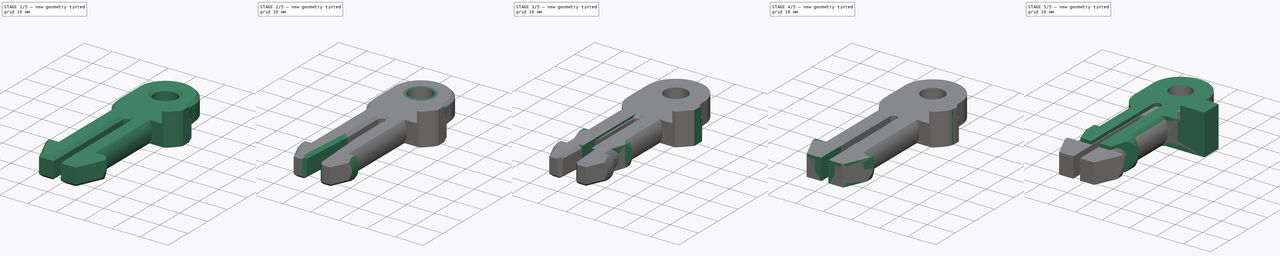
[diagram: build sequence overview — one tinted view per stage of 5, left to right]
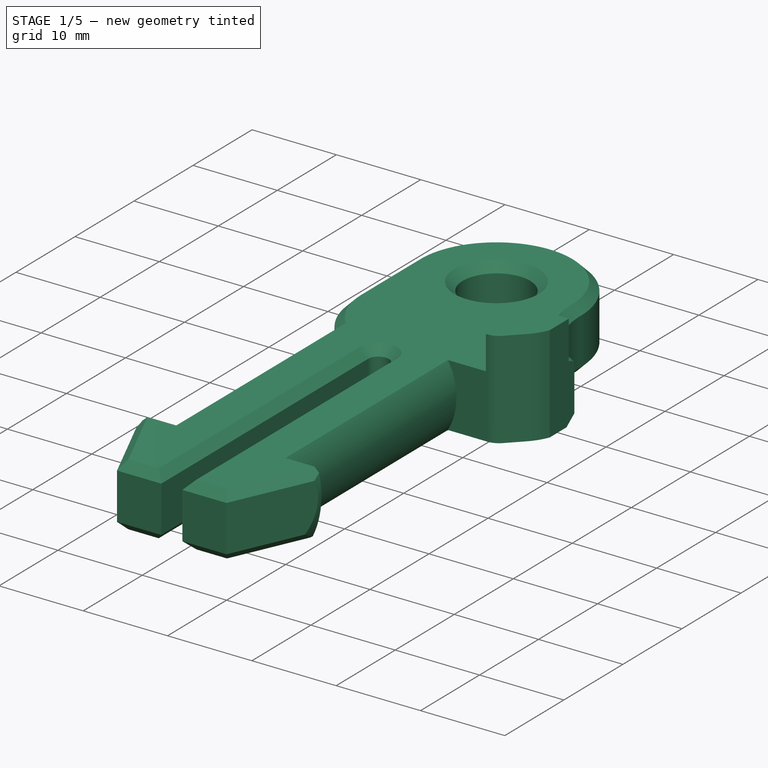
[diagram: stage 1 of 5 — iso view after this stage's code; geometry added in this stage tinted green]
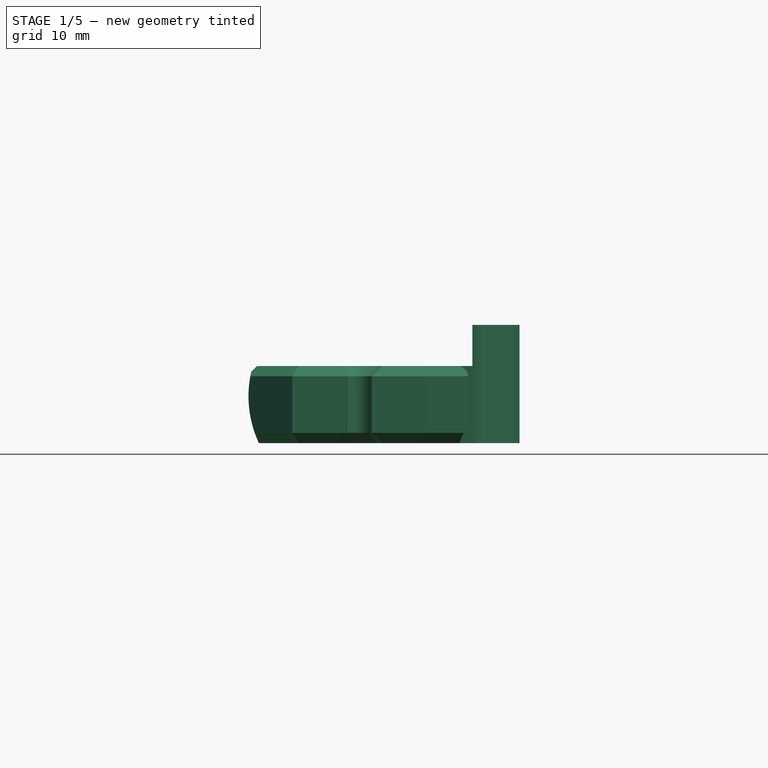
[diagram: stage 1 of 5 — front view after this stage's code; geometry added in this stage tinted green]
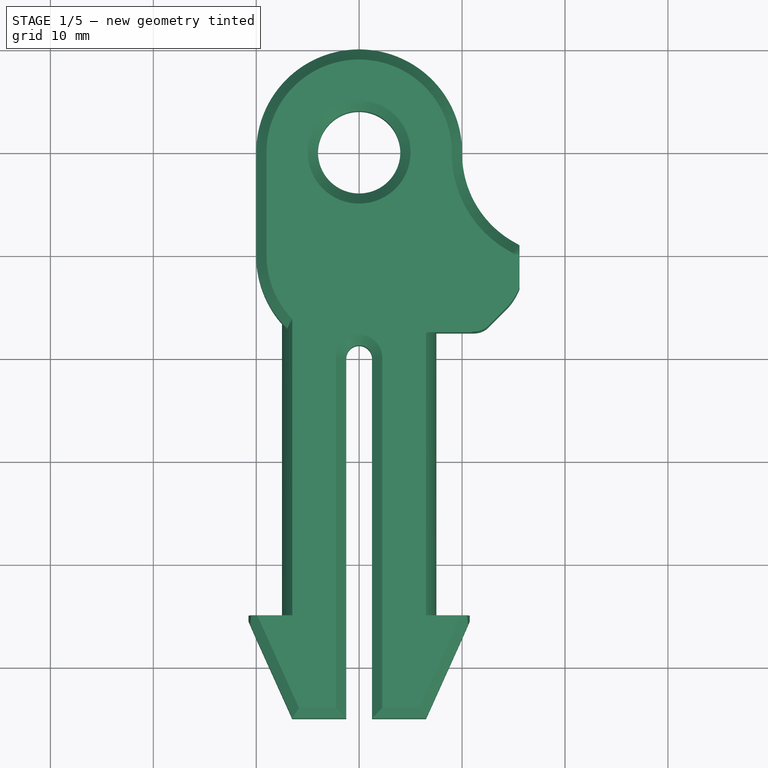
[diagram: stage 1 of 5 — top view after this stage's code; geometry added in this stage tinted green]
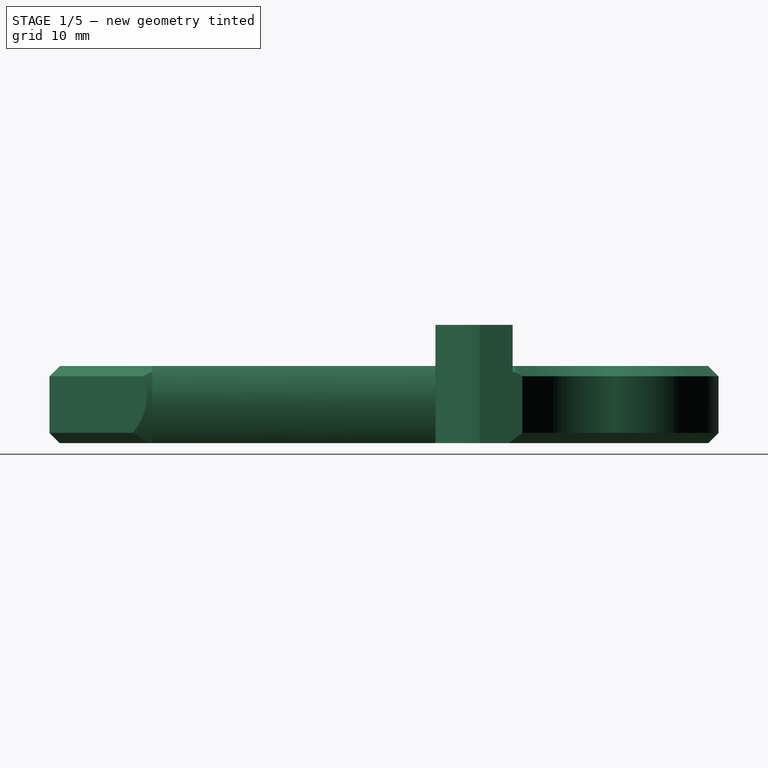
[diagram: stage 1 of 5 — right view after this stage's code; geometry added in this stage tinted green]
FCSTD DOCUMENT  (FreeCAD 0.16R5861 (Git))
Label: tippy_feed_tube_holder_v0.6
License: All rights reserved
LicenseURL: http://en.wikipedia.org/wiki/All_rights_reserved
objects: Sketcher::SketchObject×25, PartDesign::Pocket×15, PartDesign::Chamfer×15, PartDesign::Pad×10, PartDesign::Fillet×4, Part::Feature×3
note: 97 computed .brp shape members not serialized (recipe doc carries the construction recipe); baked Part::Feature solids carry a one-line shape summary decoded from their .brp

FEATURE [Part::Feature] Pocket003008001  label="Pocket003009"
  shape: bbox 26.75 x 65 x 11.5 mm, 32 faces (baked)
FEATURE [PartDesign::Chamfer] Chamfer001
  Base = -> Pocket003008001 [Edge71]
  Size = 1
FEATURE [PartDesign::Chamfer] Chamfer002
  Base = -> Chamfer001 [Edge31]
  Size = 1
FEATURE [PartDesign::Chamfer] Chamfer003
  Base = -> Chamfer002 [Edge20]
  Size = 1
FEATURE [PartDesign::Chamfer] Chamfer004
  Base = -> Chamfer003 [Edge1,Edge8,Edge47,Edge30]
  Size = 1
FEATURE [PartDesign::Chamfer] Chamfer005
  Base = -> Chamfer004 [Edge9,Edge4,Edge34,Edge48]
  Size = 1
FEATURE [PartDesign::Chamfer] Chamfer006
  Base = -> Chamfer005 [Edge97]
  Size = 1
FEATURE [PartDesign::Chamfer] Chamfer007
  Base = -> Chamfer006 [Edge48]
  Size = 1
FEATURE [Sketcher::SketchObject] Sketch021
  Placement = pos=(0,0,1.25) rot=(1,0,0;3.14159rad)
  Support = -> Chamfer007 [Face1]
  sketch-geometry (4):
    g0: LineSegment StartX=16.8382 StartY=-1.22943 StartZ=0 EndX=15.5788 EndY=-1.22943 EndZ=0
    g1: LineSegment StartX=15.5788 StartY=-1.22943 StartZ=0 EndX=15.5788 EndY=4.45657 EndZ=0
    g2: LineSegment StartX=15.5788 StartY=4.45657 StartZ=0 EndX=16.8382 EndY=4.45657 EndZ=0
    g3: LineSegment StartX=16.8382 StartY=4.45657 StartZ=0 EndX=16.8382 EndY=-1.22943 EndZ=0
  constraints (12):
    c: Coincident(g0,g1)
    c: Coincident(g1,g2)
    c: Coincident(g2,g3)
    c: Coincident(g3,g0)
    c: Horizontal(g0)
    c: Horizontal(g2)
    c: Vertical(g1)
    c: Vertical(g3)
    c: DistanceX(g0) = 16.8382
    c: DistanceY(g0) = -1.22943
    c: DistanceX(g1) = 15.5788
    c: DistanceY(g1) = 4.45657
FEATURE [PartDesign::Pocket] Pocket003008002
  Length = 5
  Sketch = -> Sketch021
  Type = 1
FEATURE [PartDesign::Chamfer] Chamfer008
  Base = -> Pocket003008002 [Edge13]
  Size = 1
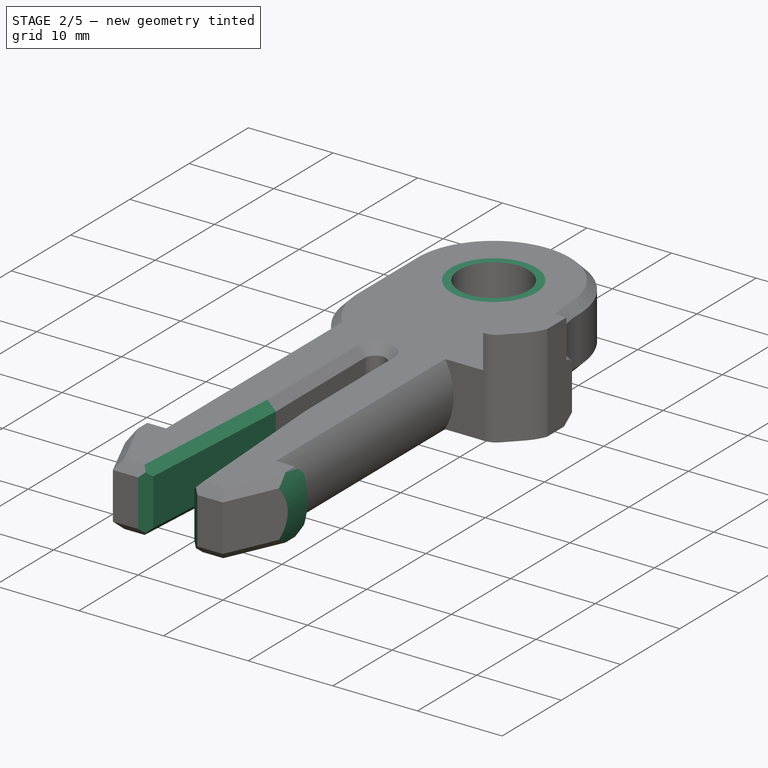
[diagram: stage 2 of 5 — iso view after this stage's code; geometry added in this stage tinted green]
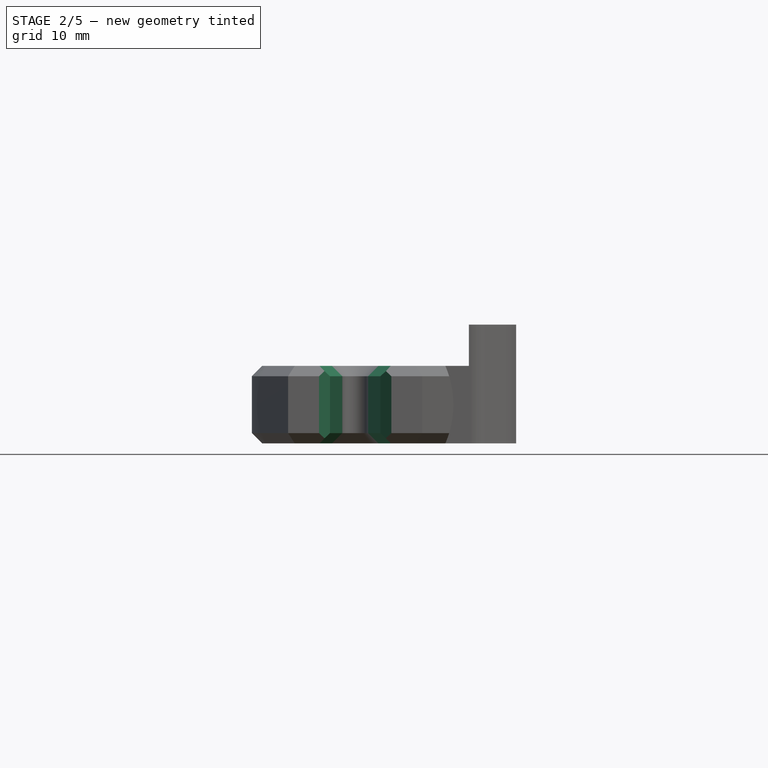
[diagram: stage 2 of 5 — front view after this stage's code; geometry added in this stage tinted green]
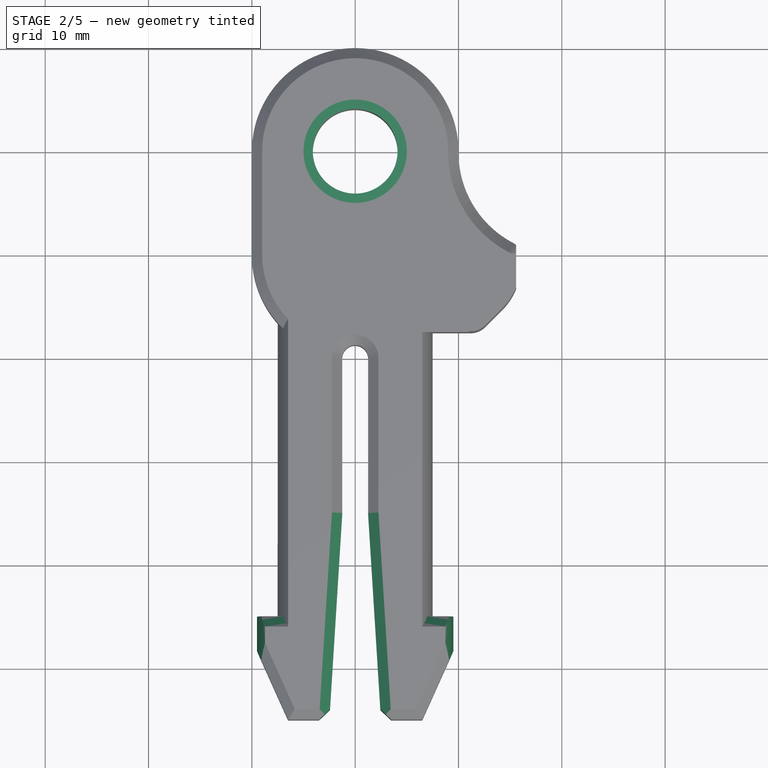
[diagram: stage 2 of 5 — top view after this stage's code; geometry added in this stage tinted green]
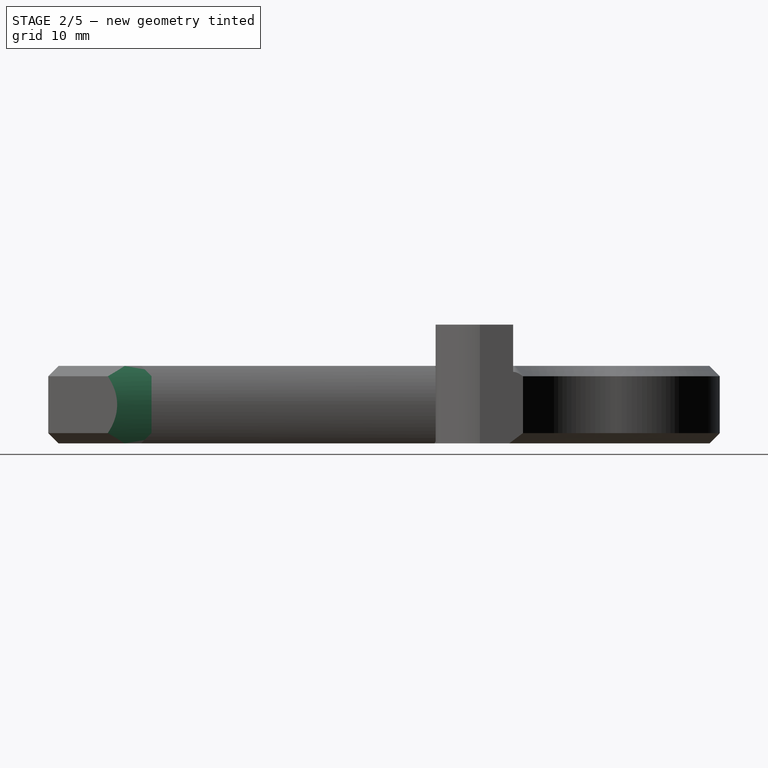
[diagram: stage 2 of 5 — right view after this stage's code; geometry added in this stage tinted green]
FEATURE [PartDesign::Chamfer] Chamfer009
  Base = -> Chamfer008 [Edge15,Edge20,Edge66,Edge81]
  Size = 1
FEATURE [Sketcher::SketchObject] Sketch022
  Placement = pos=(0,-45,0) rot=(1,0,0;1.5708rad)
  Support = -> Chamfer009 [Face30]
  sketch-geometry (2):
    g0: Circle CenterX=0 CenterY=5 CenterZ=0 NormalX=0 NormalY=0 NormalZ=1 Radius=9.5
    g1: Circle CenterX=0 CenterY=5 CenterZ=0 NormalX=0 NormalY=0 NormalZ=1 Radius=12
  constraints (5):
    c: PointOnObject(g0,g-2)
    c: Coincident(g1,g0)
    c: Radius(g1) = 12
    c: Radius(g0) = 9.5
    c: DistanceY(g-1,g0) = 5
FEATURE [PartDesign::Pocket] Pocket003008003
  Length = 12
  Sketch = -> Sketch022
  Type = 0
FEATURE [Sketcher::SketchObject] Sketch023
  ExternalGeometry = -> [Pocket003008003]
  Placement = pos=(0,0,1.25) rot=(1,0,0;3.14159rad)
  Support = -> Pocket003008003 [Face1]
  sketch-geometry (1):
    g0: Circle CenterX=0 CenterY=-10 CenterZ=0 NormalX=0 NormalY=0 NormalZ=1 Radius=4.5
  constraints (2):
    c: Coincident(g0,g-3)
    c: Radius(g0) = 4.5
FEATURE [PartDesign::Pocket] Pocket003008004
  Length = 5
  Sketch = -> Sketch023
  Type = 1
FEATURE [Sketcher::SketchObject] Sketch024
  ExternalGeometry = -> [Pocket003008004]
  Placement = pos=(0,0,8.75) rot=(0,0,1;0rad)
  Support = -> Pocket003008004 [Face38]
  sketch-geometry (4):
    g0: LineSegment StartX=-1.25 StartY=-25 StartZ=0 EndX=-2.5 EndY=-45 EndZ=0
    g1: LineSegment StartX=-2.5 StartY=-45 StartZ=0 EndX=2.5 EndY=-45 EndZ=0
    g2: LineSegment StartX=2.5 StartY=-45 StartZ=0 EndX=1.25 EndY=-25 EndZ=0
    g3: LineSegment StartX=1.25 StartY=-25 StartZ=0 EndX=-1.25 EndY=-25 EndZ=0
  constraints (12):
    c: PointOnObject(g0,g-3)
    c: PointOnObject(g0,g-6)
    c: Coincident(g0,g1)
    c: PointOnObject(g1,g-5)
    c: Coincident(g1,g2)
    c: PointOnObject(g2,g-4)
    c: Coincident(g2,g3)
    c: Coincident(g3,g0)
    c: Equal(g2,g0)
    c: Horizontal(g3)
    c: DistanceX(g1,g0) = -5
    c: DistanceY(g2,g1) = -20
FEATURE [PartDesign::Pocket] Pocket003008005
  Length = 5
  Sketch = -> Sketch024
  Type = 1
FEATURE [PartDesign::Chamfer] Chamfer010
  Base = -> Pocket003008005 [Edge51]
  Size = 1
FEATURE [PartDesign::Chamfer] Chamfer011
  Base = -> Chamfer010 [Edge58]
  Size = 1
FEATURE [PartDesign::Chamfer] Chamfer012
  Base = -> Chamfer011 [Edge126,Edge114]
  Size = 1
FEATURE [PartDesign::Chamfer] Chamfer013
  Base = -> Chamfer012 [Edge2,Edge186]
  Size = 1
FEATURE [Sketcher::SketchObject] Sketch025
  ExternalGeometry = -> [Chamfer013]
  Placement = pos=(0,0,8.75) rot=(0,0,1;0rad)
  Support = -> Chamfer013 [Face13]
  sketch-geometry (2):
    g0: Circle CenterX=0 CenterY=10 CenterZ=0 NormalX=0 NormalY=0 NormalZ=1 Radius=4.1
    g1: Circle CenterX=0 CenterY=10 CenterZ=0 NormalX=0 NormalY=0 NormalZ=1 Radius=5.5
  constraints (4):
    c: Coincident(g0,g-3)
    c: Coincident(g1,g0)
    c: Radius(g1) = 5.5
    c: Radius(g0) = 4.1
FEATURE [PartDesign::Pad] Pad009
  Length = 7.5
  Length2 = 100
  Reversed = true
  Sketch = -> Sketch025
  Type = 0
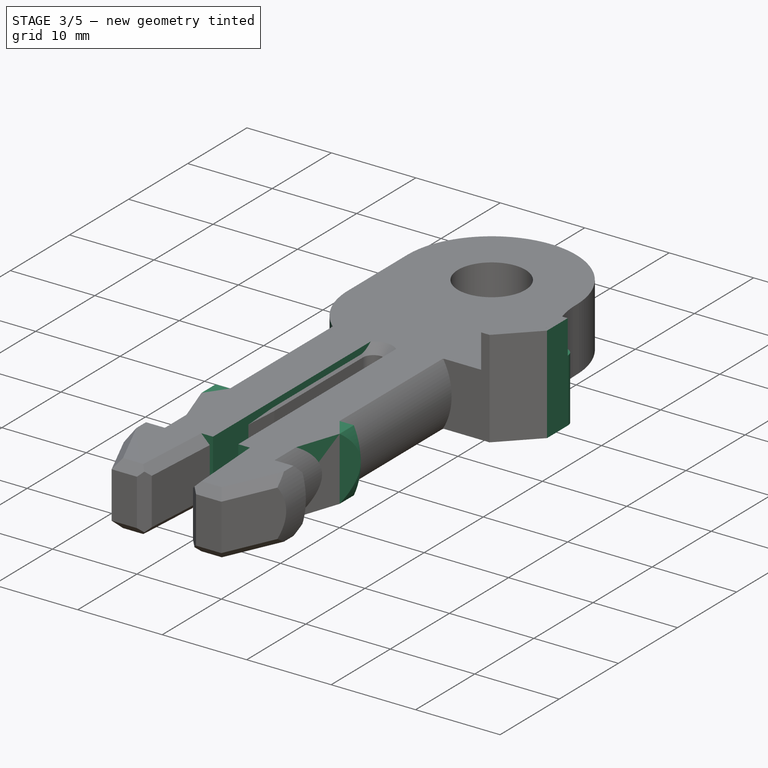
[diagram: stage 3 of 5 — iso view after this stage's code; geometry added in this stage tinted green]
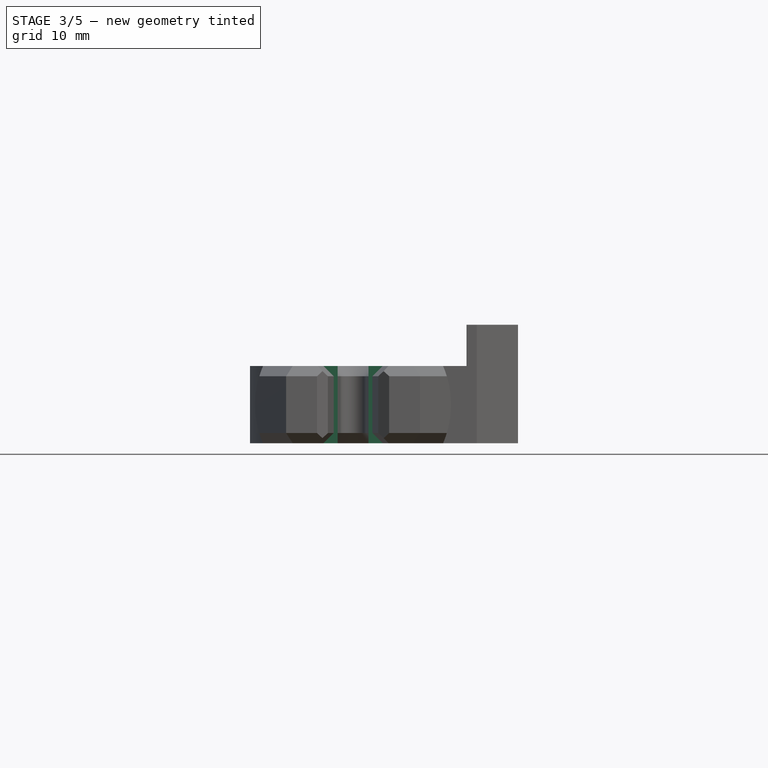
[diagram: stage 3 of 5 — front view after this stage's code; geometry added in this stage tinted green]
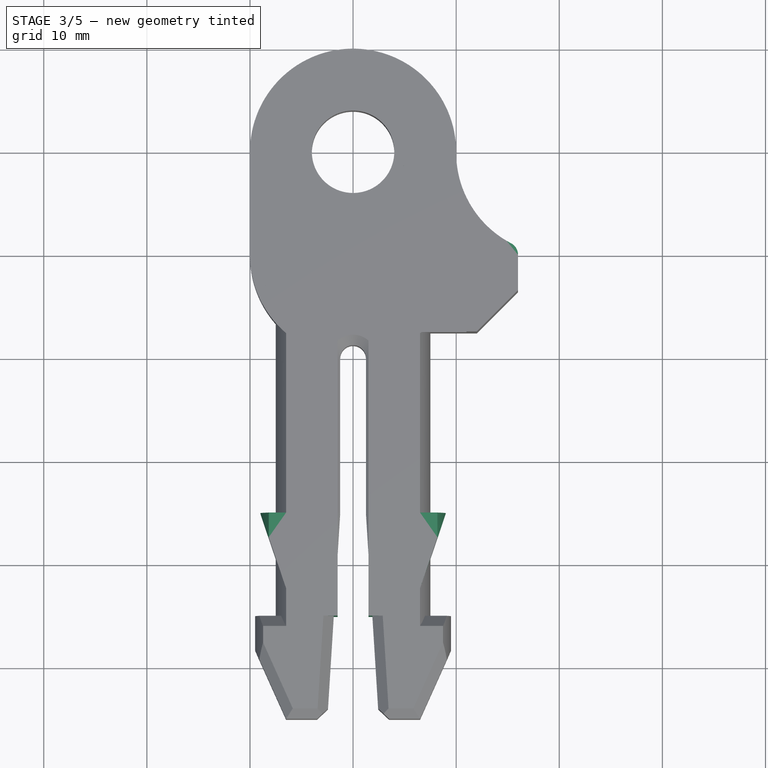
[diagram: stage 3 of 5 — top view after this stage's code; geometry added in this stage tinted green]
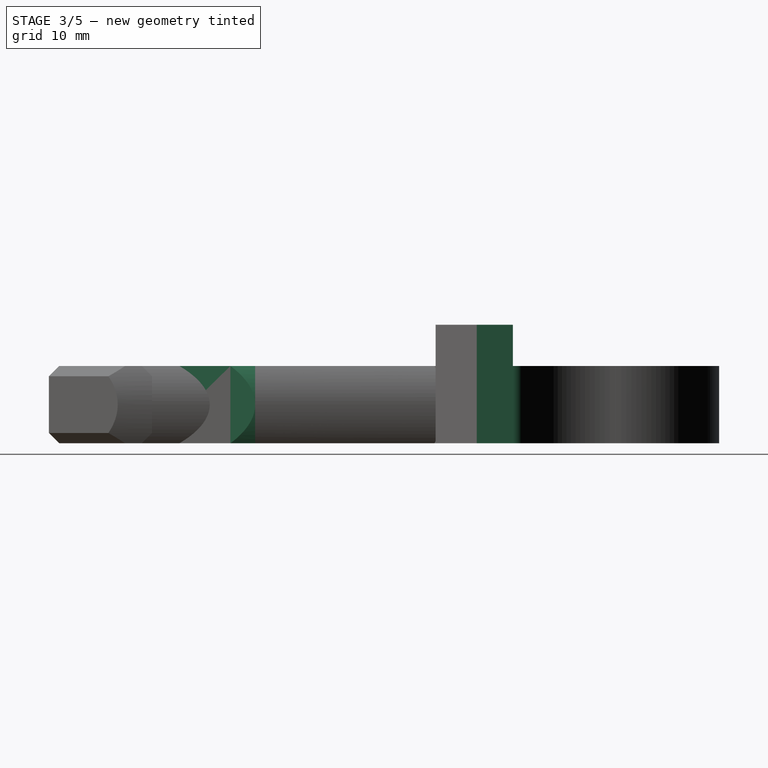
[diagram: stage 3 of 5 — right view after this stage's code; geometry added in this stage tinted green]
FEATURE [Part::Feature] Pocket003001  label="Pocket004"
  shape: bbox 31 x 55 x 15 mm, 29 faces (baked)
FEATURE [PartDesign::Fillet] Fillet
  Base = -> Pocket003001 [Edge44]
  Radius = 9.9
FEATURE [Sketcher::SketchObject] Sketch010
  ExternalGeometry = -> [Fillet]
  Placement = pos=(0,0,15) rot=(0,0,1;0rad)
  Support = -> Fillet [Face24]
  sketch-geometry (4):
    g0: LineSegment StartX=21 StartY=0 StartZ=0 EndX=11 EndY=0 EndZ=0
    g1: LineSegment StartX=11 StartY=0 StartZ=0 EndX=11 EndY=7 EndZ=0
    g2: LineSegment StartX=11 StartY=7 StartZ=0 EndX=21 EndY=7 EndZ=0
    g3: LineSegment StartX=21 StartY=7 StartZ=0 EndX=21 EndY=0 EndZ=0
  constraints (11):
    c: Coincident(g0,g1)
    c: Coincident(g1,g2)
    c: Coincident(g2,g3)
    c: Coincident(g3,g0)
    c: Horizontal(g0)
    c: Horizontal(g2)
    c: Vertical(g1)
    c: Vertical(g3)
    c: Coincident(g0,g-3)
    c: DistanceX(g2) = 10
    c: DistanceY(g3) = -7
FEATURE [PartDesign::Pocket] Pocket003002
  Length = 5
  Sketch = -> Sketch010
  Type = 0
FEATURE [Sketcher::SketchObject] Sketch011
  ExternalGeometry = -> [Pocket003002]
  Placement = pos=(0,0,15) rot=(0,0,1;0rad)
  Support = -> Pocket003002 [Face26]
  sketch-geometry (4):
    g0: LineSegment StartX=21 StartY=-7.5 StartZ=0 EndX=16 EndY=-7.5 EndZ=0
    g1: LineSegment StartX=16 StartY=-7.5 StartZ=0 EndX=16 EndY=2.5 EndZ=0
    g2: LineSegment StartX=16 StartY=2.5 StartZ=0 EndX=21 EndY=2.5 EndZ=0
    g3: LineSegment StartX=21 StartY=2.5 StartZ=0 EndX=21 EndY=-7.5 EndZ=0
  constraints (11):
    c: Coincident(g0,g1)
    c: Coincident(g1,g2)
    c: Coincident(g2,g3)
    c: Coincident(g3,g0)
    c: Horizontal(g0)
    c: Horizontal(g2)
    c: Vertical(g1)
    c: Vertical(g3)
    c: Coincident(g0,g-3)
    c: DistanceX(g2) = 5
    c: DistanceY(g3) = -10
FEATURE [PartDesign::Pocket] Pocket003003
  Length = 5
  Sketch = -> Sketch011
  Type = 1
FEATURE [Sketcher::SketchObject] Sketch012
  Placement = pos=(0,-35,0) rot=(1,0,0;1.5708rad)
  Support = -> Pocket003003 [Face8]
  sketch-geometry (8):
    g0: LineSegment StartX=-20 StartY=0 StartZ=0 EndX=20 EndY=0 EndZ=0
    g1: LineSegment StartX=20 StartY=0 StartZ=0 EndX=20 EndY=1.25 EndZ=0
    g2: LineSegment StartX=20 StartY=1.25 StartZ=0 EndX=-20 EndY=1.25 EndZ=0
    g3: LineSegment StartX=-20 StartY=1.25 StartZ=0 EndX=-20 EndY=0 EndZ=0
    g4: LineSegment StartX=-20 StartY=18.75 StartZ=0 EndX=20 EndY=18.75 EndZ=0
    g5: LineSegment StartX=20 StartY=18.75 StartZ=0 EndX=20 EndY=8.75 EndZ=0
    g6: LineSegment StartX=20 StartY=8.75 StartZ=0 EndX=-20 EndY=8.75 EndZ=0
    g7: LineSegment StartX=-20 StartY=8.75 StartZ=0 EndX=-20 EndY=18.75 EndZ=0
  constraints (24):
    c: Coincident(g0,g1)
    c: Coincident(g1,g2)
    c: Coincident(g2,g3)
    c: Coincident(g3,g0)
    c: Horizontal(g0)
    c: Horizontal(g2)
    c: Vertical(g1)
    c: Vertical(g3)
    c: PointOnObject(g0,g-1)
    c: Coincident(g4,g5)
    c: Coincident(g5,g6)
    c: Coincident(g6,g7)
    c: Coincident(g7,g4)
    c: Horizontal(g4)
    c: Horizontal(g6)
    c: Vertical(g5)
    c: Vertical(g7)
    c: PointOnObject(g5,g1)
    c: Equal(g2,g6)
    c: DistanceX(g-1,g0) = 20
    c: DistanceX(g0) = 40
    c: DistanceY(g1) = 1.25
    c: DistanceY(g6,g2) = -7.5
    c: DistanceY(g5) = -10
FEATURE [PartDesign::Pocket] Pocket003004
  Length = 5
  Sketch = -> Sketch012
  Type = 1
FEATURE [Sketcher::SketchObject] Sketch013
  ExternalGeometry = -> [Pocket003004]
  Placement = pos=(0,0,8.75) rot=(0,0,1;0rad)
  Support = -> Pocket003004 [Face7]
  sketch-geometry (4):
    g0: LineSegment StartX=16 StartY=-7.5 StartZ=0 EndX=11 EndY=-7.5 EndZ=0
    g1: LineSegment StartX=11 StartY=-7.5 StartZ=0 EndX=11 EndY=0 EndZ=0
    g2: LineSegment StartX=11 StartY=0 StartZ=0 EndX=16 EndY=0 EndZ=0
    g3: LineSegment StartX=16 StartY=0 StartZ=0 EndX=16 EndY=-7.5 EndZ=0
  constraints (11):
    c: Coincident(g0,g1)
    c: Coincident(g1,g2)
    c: Coincident(g2,g3)
    c: Coincident(g3,g0)
    c: Horizontal(g0)
    c: Horizontal(g2)
    c: Vertical(g1)
    c: Vertical(g3)
    c: Coincident(g0,g-3)
    c: DistanceY(g1,g-4) = 10
    c: DistanceX(g1,g-4) = -11
FEATURE [PartDesign::Pad] Pad005
  Length = 4
  Length2 = 100
  Sketch = -> Sketch013
  Type = 0
FEATURE [PartDesign::Fillet] Fillet001
  Base = -> Pad005 [Edge51]
  Radius = 1.25
FEATURE [PartDesign::Chamfer] Chamfer
  Base = -> Fillet001 [Edge33]
  Size = 4
FEATURE [PartDesign::Chamfer] Chamfer014
  Base = -> Pad009 [Edge2,Edge3]
  Size = 1
FEATURE [Part::Feature] Chamfer014001  label="Chamfer015"
  shape: bbox 26.24 x 65 x 11.5 mm, 74 faces (baked)
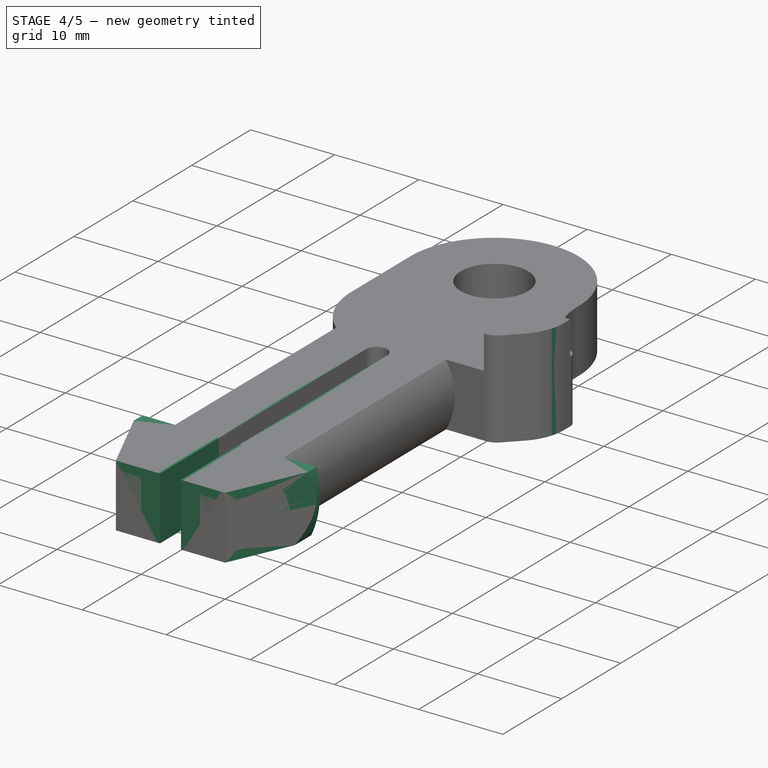
[diagram: stage 4 of 5 — iso view after this stage's code; geometry added in this stage tinted green]
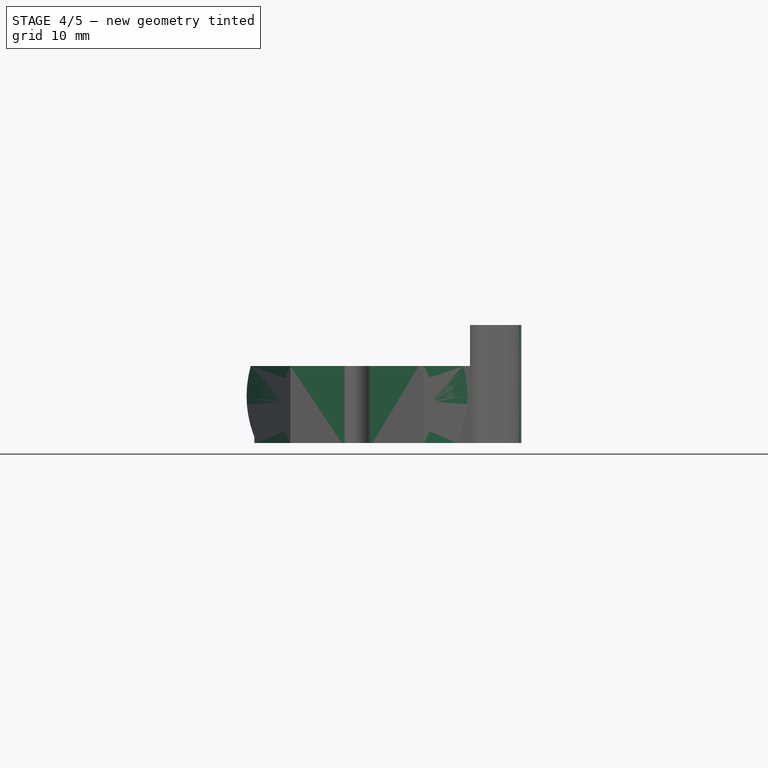
[diagram: stage 4 of 5 — front view after this stage's code; geometry added in this stage tinted green]
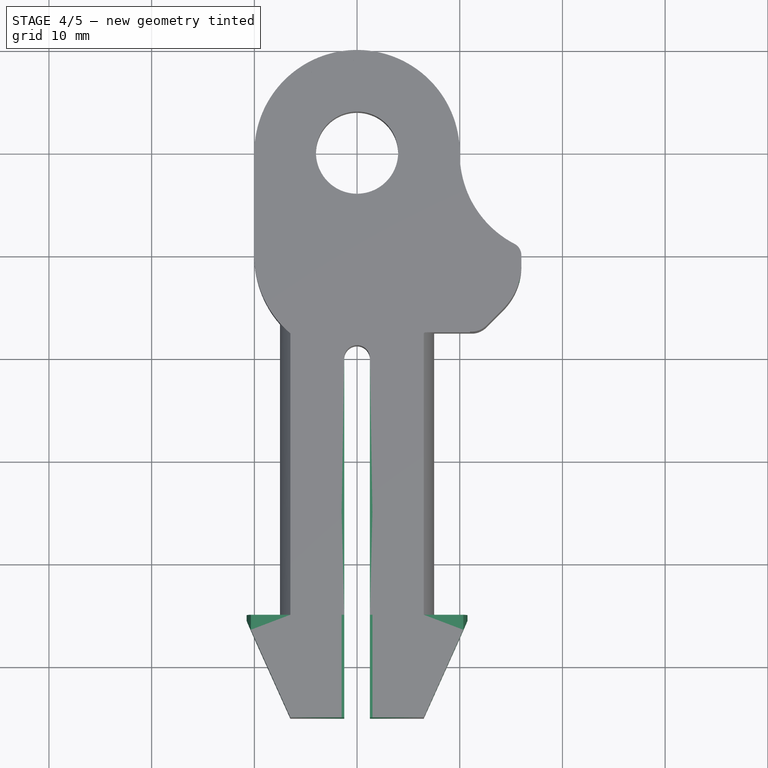
[diagram: stage 4 of 5 — top view after this stage's code; geometry added in this stage tinted green]
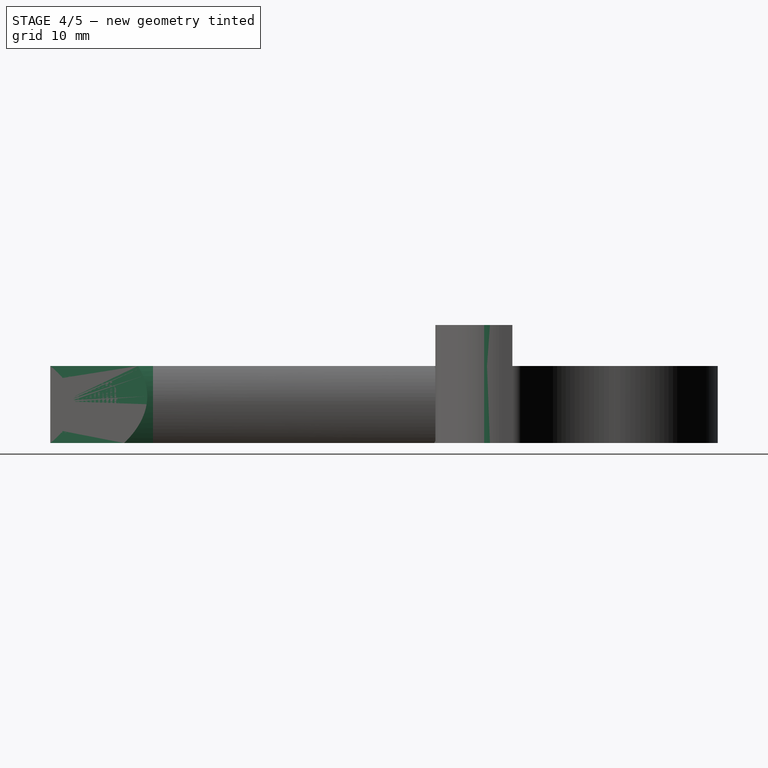
[diagram: stage 4 of 5 — right view after this stage's code; geometry added in this stage tinted green]
FEATURE [PartDesign::Fillet] Fillet002
  Base = -> Chamfer [Edge26]
  Radius = 6
FEATURE [PartDesign::Fillet] Fillet003
  Base = -> Fillet002 [Edge35]
  Radius = 2
FEATURE [Sketcher::SketchObject] Sketch014
  Placement = pos=(0,0,8.75) rot=(0,0,1;0rad)
  Support = -> Fillet003 [Face32]
  sketch-geometry (4):
    g0: LineSegment StartX=-11.8626 StartY=-25 StartZ=0 EndX=10.1374 EndY=-25 EndZ=0
    g1: LineSegment StartX=10.1374 StartY=-25 StartZ=0 EndX=10.1374 EndY=-35.7389 EndZ=0
    g2: LineSegment StartX=10.1374 StartY=-35.7389 StartZ=0 EndX=-11.8626 EndY=-35.7389 EndZ=0
    g3: LineSegment StartX=-11.8626 StartY=-35.7389 StartZ=0 EndX=-11.8626 EndY=-25 EndZ=0
  constraints (12):
    c: Coincident(g0,g1)
    c: Coincident(g1,g2)
    c: Coincident(g2,g3)
    c: Coincident(g3,g0)
    c: Horizontal(g0)
    c: Horizontal(g2)
    c: Vertical(g1)
    c: Vertical(g3)
    c: DistanceX(g2) = -11.8626
    c: DistanceY(g2) = -35.7389
    c: DistanceX(g2) = -22
    c: DistanceY(g-1,g0) = -25
FEATURE [PartDesign::Pocket] Pocket003005
  Length = 5
  Sketch = -> Sketch014
  Type = 1
FEATURE [Sketcher::SketchObject] Sketch015
  ExternalGeometry = -> [Pocket003005]
  Placement = pos=(0,-25,0) rot=(1,0,0;1.5708rad)
  Support = -> Pocket003005 [Face10]
  sketch-geometry (10):
    g0: ArcOfCircle CenterX=0 CenterY=5 CenterZ=0 NormalX=0 NormalY=0 NormalZ=1 Radius=7.5 StartAngle=2.61799 EndAngle=3.66519
    g1: ArcOfCircle CenterX=0 CenterY=5 CenterZ=0 NormalX=0 NormalY=0 NormalZ=1 Radius=7.5 StartAngle=5.75959 EndAngle=6.80678
    g2: LineSegment StartX=-6.49519 StartY=8.75 StartZ=0 EndX=-1.5 EndY=8.75 EndZ=0
    g3: LineSegment StartX=-1.5 StartY=8.75 StartZ=0 EndX=-1.5 EndY=1.25 EndZ=0
    g4: LineSegment StartX=-1.5 StartY=1.25 StartZ=0 EndX=-6.49519 EndY=1.25 EndZ=0
    g5: LineSegment [constr] StartX=-6.49519 StartY=1.25 StartZ=0 EndX=-6.49519 EndY=8.75 EndZ=0
    g6: LineSegment StartX=1.5 StartY=8.75 StartZ=0 EndX=6.49519 EndY=8.75 EndZ=0
    g7: LineSegment [constr] StartX=6.49519 StartY=8.75 StartZ=0 EndX=6.49519 EndY=1.25 EndZ=0
    g8: LineSegment StartX=6.49519 StartY=1.25 StartZ=0 EndX=1.5 EndY=1.25 EndZ=0
    g9: LineSegment StartX=1.5 StartY=1.25 StartZ=0 EndX=1.5 EndY=8.75 EndZ=0
  constraints (26):
    c: Coincident(g0,g-5)
    c: Coincident(g0,g-3)
    c: Coincident(g0,g-3)
    c: Coincident(g1,g0)
    c: Coincident(g1,g-4)
    c: Coincident(g1,g-5)
    c: Coincident(g2,g3)
    c: Coincident(g3,g4)
    c: Coincident(g4,g5)
    c: Coincident(g5,g2)
    c: Horizontal(g2)
    c: Horizontal(g4)
    c: Vertical(g3)
    c: Vertical(g5)
    c: Coincident(g2,g0)
    c: Coincident(g3,g-7)
    c: Coincident(g6,g7)
    c: Coincident(g7,g8)
    c: Coincident(g8,g9)
    c: Coincident(g9,g6)
    c: Horizontal(g6)
    c: Horizontal(g8)
    c: Vertical(g7)
    c: Vertical(g9)
    c: Coincident(g6,g-6)
    c: Coincident(g7,g1)
FEATURE [PartDesign::Pad] Pad006
  Length = 20
  Length2 = 100
  Sketch = -> Sketch015
  Type = 0
FEATURE [Sketcher::SketchObject] Sketch016
  ExternalGeometry = -> [Pad006]
  Placement = pos=(0,0,8.75) rot=(0,0,1;0rad)
  Support = -> Pad006 [Face33]
  sketch-geometry (4):
    g0: LineSegment StartX=-6.49519 StartY=-45 StartZ=0 EndX=-11 EndY=-35 EndZ=0
    g1: LineSegment StartX=-11 StartY=-35 StartZ=0 EndX=11 EndY=-35 EndZ=0
    g2: LineSegment StartX=11 StartY=-35 StartZ=0 EndX=6.49519 EndY=-45 EndZ=0
    g3: LineSegment StartX=6.49519 StartY=-45 StartZ=0 EndX=-6.49519 EndY=-45 EndZ=0
  constraints (11):
    c: Coincident(g-3,g0)
    c: Coincident(g0,g1)
    c: Horizontal(g1)
    c: Coincident(g1,g2)
    c: Coincident(g2,g-4)
    c: Coincident(g2,g3)
    c: Horizontal(g3)
    c: Coincident(g3,g0)
    c: Equal(g2,g0)
    c: DistanceX(g1) = 22
    c: DistanceY(g1,g2) = -10
FEATURE [PartDesign::Pad] Pad007
  Length = 7.5
  Length2 = 100
  Reversed = true
  Sketch = -> Sketch016
  Type = 0
FEATURE [Sketcher::SketchObject] Sketch017
  ExternalGeometry = -> [Pad007]
  Placement = pos=(0,0,8.75) rot=(0,0,1;0rad)
  Support = -> Pad007 [Face10]
  sketch-geometry (4):
    g0: LineSegment StartX=-6.49519 StartY=-45 StartZ=0 EndX=6.00481 EndY=-45 EndZ=0
    g1: LineSegment StartX=6.00481 StartY=-45 StartZ=0 EndX=6.00481 EndY=0 EndZ=0
    g2: LineSegment StartX=6.00481 StartY=0 StartZ=0 EndX=-6.49519 EndY=0 EndZ=0
    g3: LineSegment StartX=-6.49519 StartY=0 StartZ=0 EndX=-6.49519 EndY=-45 EndZ=0
  constraints (11):
    c: Coincident(g0,g1)
    c: Coincident(g1,g2)
    c: Coincident(g2,g3)
    c: Coincident(g3,g0)
    c: Horizontal(g0)
    c: Horizontal(g2)
    c: Vertical(g1)
    c: Vertical(g3)
    c: Coincident(g0,g-3)
    c: PointOnObject(g1,g-1)
    c: DistanceX(g0) = 12.5
FEATURE [PartDesign::Pad] Pad008
  Length = 7.5
  Length2 = 100
  Reversed = true
  Sketch = -> Sketch017
  Type = 0
FEATURE [Sketcher::SketchObject] Sketch018
  ExternalGeometry = -> [Pad008]
  Placement = pos=(0,0,8.75) rot=(0,0,1;0rad)
  Support = -> Pad008 [Face49]
  sketch-geometry (4):
    g0: ArcOfCircle CenterX=0 CenterY=-45 CenterZ=0 NormalX=0 NormalY=0 NormalZ=1 Radius=1.25 StartAngle=3.14159 EndAngle=6.28319
    g1: ArcOfCircle CenterX=0 CenterY=-10 CenterZ=0 NormalX=0 NormalY=0 NormalZ=1 Radius=1.25 StartAngle=0 EndAngle=3.14159
    g2: LineSegment StartX=1.25 StartY=-45 StartZ=0 EndX=1.25 EndY=-10 EndZ=0
    g3: LineSegment StartX=-1.25 StartY=-45 StartZ=0 EndX=-1.25 EndY=-10 EndZ=0
  constraints (10):
    c: Tangent(g0,g3) = 1.5708
    c: Tangent(g0,g2) = -1.5708
    c: Tangent(g2,g1) = -1.5708
    c: Tangent(g3,g1) = 1.5708
    c: Vertical(g2)
    c: Equal(g0,g1)
    c: PointOnObject(g0,g-2)
    c: PointOnObject(g0,g-3)
    c: Radius(g1) = 1.25
    c: DistanceY(g0,g1) = 35
FEATURE [PartDesign::Pocket] Pocket003006
  Length = 5
  Sketch = -> Sketch018
  Type = 1
FEATURE [Sketcher::SketchObject] Sketch019
  ExternalGeometry = -> [Pocket003006]
  Placement = pos=(0,0,8.75) rot=(0,0,1;0rad)
  Support = -> Pocket003006 [Face52]
  sketch-geometry (7):
    g0: LineSegment [constr] StartX=-11 StartY=-35 StartZ=0 EndX=11 EndY=-35 EndZ=0
    g1: LineSegment StartX=11 StartY=-35 StartZ=0 EndX=11 EndY=-50 EndZ=0
    g2: LineSegment StartX=11 StartY=-50 StartZ=0 EndX=-11 EndY=-50 EndZ=0
    g3: LineSegment StartX=-11 StartY=-50 StartZ=0 EndX=-11 EndY=-35 EndZ=0
    g4: LineSegment StartX=-11 StartY=-35 StartZ=0 EndX=-6.49519 EndY=-45 EndZ=0
    g5: LineSegment StartX=-6.49519 StartY=-45 StartZ=0 EndX=6.49519 EndY=-45 EndZ=0
    g6: LineSegment StartX=6.49519 StartY=-45 StartZ=0 EndX=11 EndY=-35 EndZ=0
  constraints (17):
    c: Coincident(g0,g1)
    c: Coincident(g1,g2)
    c: Coincident(g2,g3)
    c: Coincident(g3,g0)
    c: Horizontal(g0)
    c: Horizontal(g2)
    c: Vertical(g1)
    c: Vertical(g3)
    c: Coincident(g0,g-3)
    c: Coincident(g0,g-4)
    c: DistanceY(g1) = -15
    c: Coincident(g0,g4)
    c: Coincident(g4,g-3)
    c: Coincident(g4,g5)
    c: Coincident(g5,g-4)
    c: Coincident(g5,g6)
    c: Coincident(g6,g0)
FEATURE [PartDesign::Pocket] Pocket003007
  Length = 5
  Sketch = -> Sketch019
  Type = 1
FEATURE [Sketcher::SketchObject] Sketch020
  Placement = pos=(0,-45,0) rot=(1,0,0;1.5708rad)
  Support = -> Pocket003007 [Face57]
  sketch-geometry (2):
    g0: Circle CenterX=0 CenterY=5.81302 CenterZ=0 NormalX=0 NormalY=0 NormalZ=1 Radius=12
    g1: Circle CenterX=0 CenterY=5.81302 CenterZ=0 NormalX=0 NormalY=0 NormalZ=1 Radius=10.75
  constraints (4):
    c: PointOnObject(g0,g-2)
    c: Coincident(g1,g0)
    c: Radius(g0) = 12
    c: Radius(g1) = 10.75
FEATURE [PartDesign::Pocket] Pocket003008
  Length = 13
  Sketch = -> Sketch020
  Type = 0
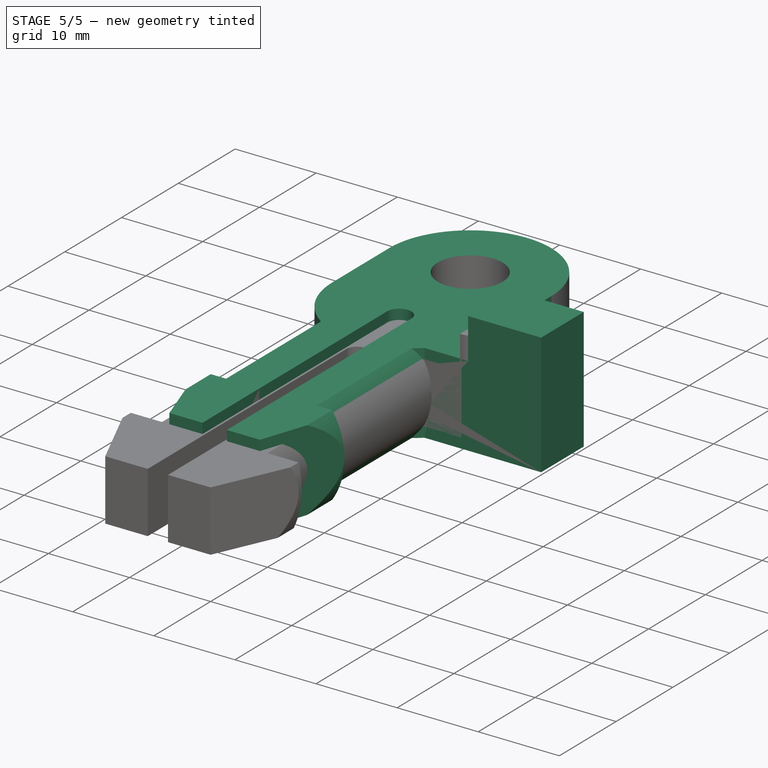
[diagram: stage 5 of 5 — iso view after this stage's code; geometry added in this stage tinted green]
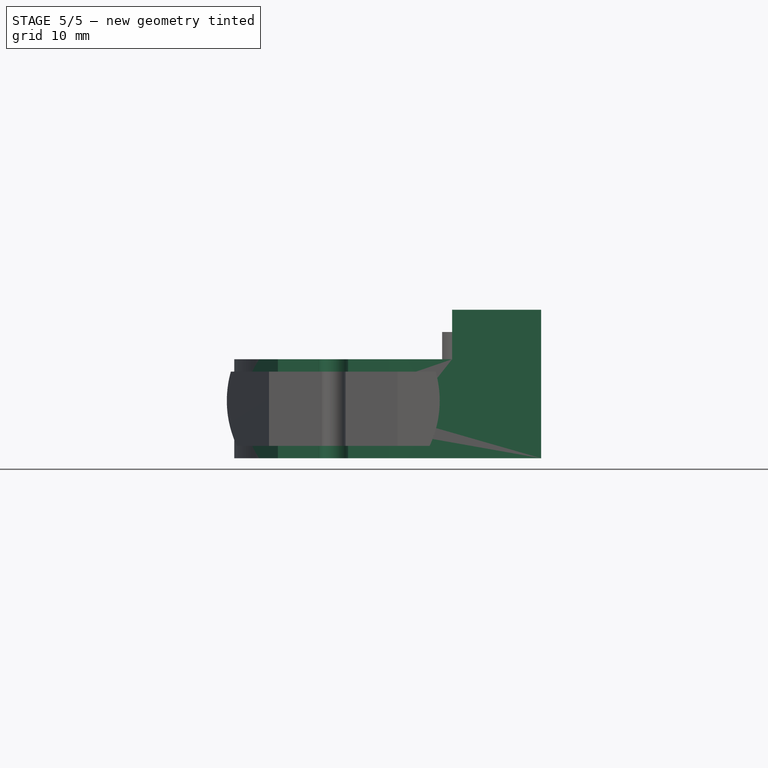
[diagram: stage 5 of 5 — front view after this stage's code; geometry added in this stage tinted green]
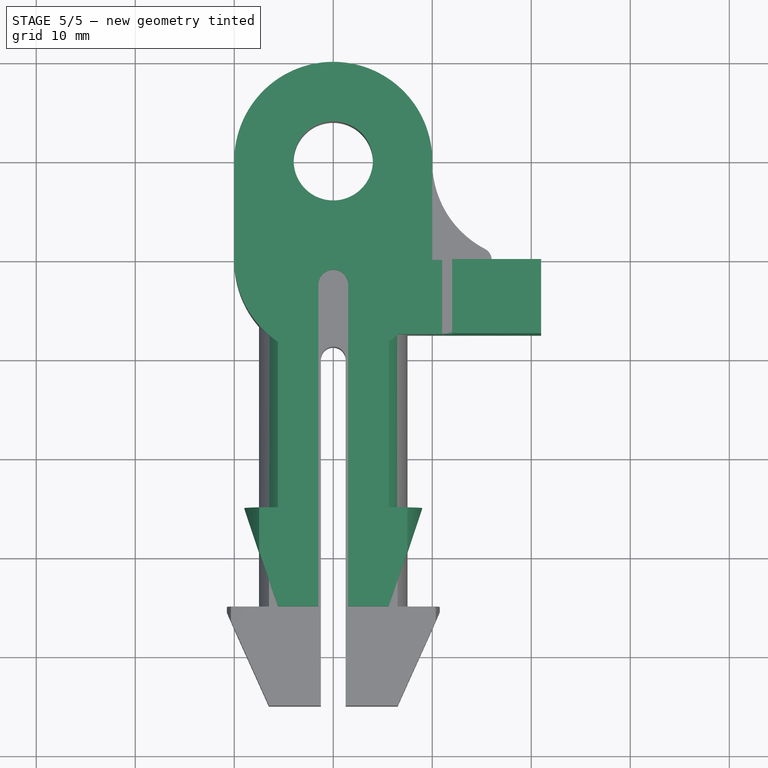
[diagram: stage 5 of 5 — top view after this stage's code; geometry added in this stage tinted green]
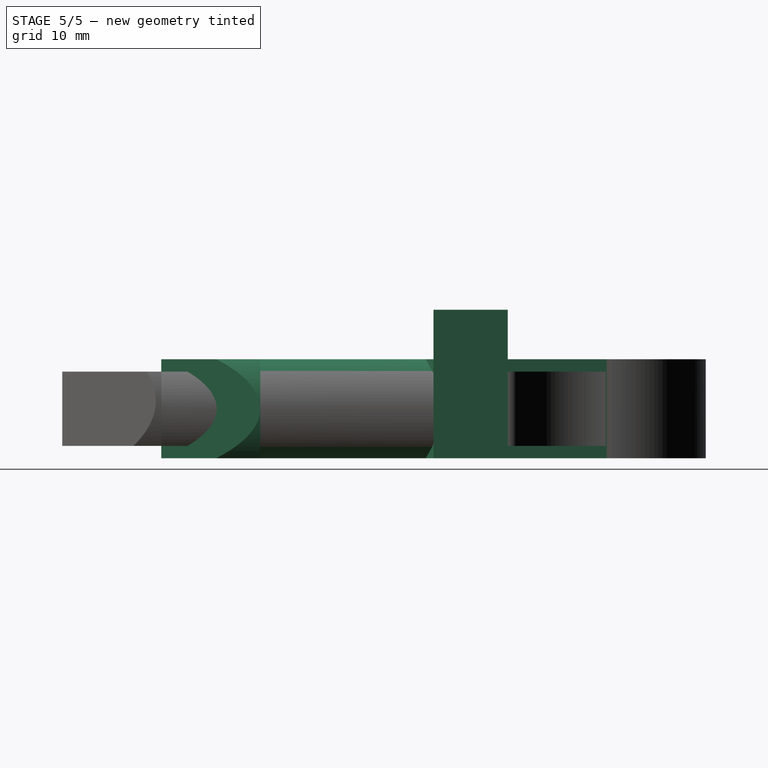
[diagram: stage 5 of 5 — right view after this stage's code; geometry added in this stage tinted green]
FEATURE [Sketcher::SketchObject] Sketch
  Placement = pos=(0,0,0) rot=(1,0,0;1.5708rad)
  sketch-geometry (1):
    g0: Circle CenterX=0 CenterY=5 CenterZ=0 NormalX=0 NormalY=0 NormalZ=1 Radius=7.5
  constraints (3):
    c: PointOnObject(g0,g-2)
    c: DistanceY(g-1,g0) = 5
    c: Radius(g0) = 7.5
FEATURE [PartDesign::Pad] Pad
  Length = 35
  Length2 = 100
  Placement = pos=(0,0,0) rot=(1,0,0;1.5708rad)
  Sketch = -> Sketch
  Type = 0
FEATURE [Sketcher::SketchObject] Sketch001
  Placement = pos=(0,-35,0) rot=(1,0,0;1.5708rad)
  Support = -> Pad [Face3]
  sketch-geometry (8):
    g0: LineSegment StartX=-10 StartY=0 StartZ=0 EndX=10 EndY=0 EndZ=0
    g1: LineSegment StartX=10 StartY=0 StartZ=0 EndX=10 EndY=-5 EndZ=0
    g2: LineSegment StartX=10 StartY=-5 StartZ=0 EndX=-10 EndY=-5 EndZ=0
    g3: LineSegment StartX=-10 StartY=-5 StartZ=0 EndX=-10 EndY=0 EndZ=0
    g4: LineSegment StartX=-10 StartY=10 StartZ=0 EndX=10 EndY=10 EndZ=0
    g5: LineSegment StartX=10 StartY=10 StartZ=0 EndX=10 EndY=15 EndZ=0
    g6: LineSegment StartX=10 StartY=15 StartZ=0 EndX=-10 EndY=15 EndZ=0
    g7: LineSegment StartX=-10 StartY=15 StartZ=0 EndX=-10 EndY=10 EndZ=0
  constraints (24):
    c: Coincident(g0,g1)
    c: Coincident(g1,g2)
    c: Coincident(g2,g3)
    c: Coincident(g3,g0)
    c: Horizontal(g0)
    c: Horizontal(g2)
    c: Vertical(g1)
    c: Vertical(g3)
    c: PointOnObject(g0,g-1)
    c: Coincident(g4,g5)
    c: Coincident(g5,g6)
    c: Coincident(g6,g7)
    c: Coincident(g7,g4)
    c: Horizontal(g4)
    c: Horizontal(g6)
    c: Vertical(g5)
    c: Vertical(g7)
    c: PointOnObject(g0,g5)
    c: Equal(g4,g0)
    c: DistanceX(g-1,g0) = -10
    c: DistanceX(g2) = -20
    c: Equal(g1,g5)
    c: DistanceY(g1) = -5
    c: DistanceY(g4,g0) = -10
FEATURE [PartDesign::Pocket] Pocket
  Length = 5
  Placement = pos=(0,0,0) rot=(1,0,0;1.5708rad)
  Sketch = -> Sketch001
  Type = 1
FEATURE [Sketcher::SketchObject] Sketch003
  ExternalGeometry = -> [Pocket]
  Placement = pos=(0,0,10) rot=(0,0,1;3.14159rad)
  Support = -> Pocket [Face3]
  sketch-geometry (4):
    g0: LineSegment StartX=-5.59017 StartY=35 StartZ=0 EndX=-9 EndY=25 EndZ=0
    g1: LineSegment StartX=-9 StartY=25 StartZ=0 EndX=9 EndY=25 EndZ=0
    g2: LineSegment StartX=9 StartY=25 StartZ=0 EndX=5.59017 EndY=35 EndZ=0
    g3: LineSegment StartX=5.59017 StartY=35 StartZ=0 EndX=-5.59017 EndY=35 EndZ=0
  constraints (10):
    c: Coincident(g-3,g0)
    c: Coincident(g0,g1)
    c: Horizontal(g1)
    c: Coincident(g1,g2)
    c: Coincident(g2,g-3)
    c: Coincident(g2,g3)
    c: Coincident(g3,g0)
    c: Equal(g0,g2)
    c: DistanceX(g1) = 18
    c: DistanceY(g1,g2) = 10
FEATURE [PartDesign::Pad] Pad001
  Length = 10
  Length2 = 100
  Placement = pos=(0,0,0) rot=(1,0,0;1.5708rad)
  Reversed = true
  Sketch = -> Sketch003
  Type = 0
FEATURE [Sketcher::SketchObject] Sketch004
  ExternalGeometry = -> [Pad001]
  Placement = pos=(0,0,10) rot=(0,0,1;3.14159rad)
  Support = -> Pad001 [Face11]
  sketch-geometry (7):
    g0: LineSegment [constr] StartX=-9 StartY=25 StartZ=0 EndX=9 EndY=25 EndZ=0
    g1: LineSegment StartX=9 StartY=25 StartZ=0 EndX=9 EndY=40 EndZ=0
    g2: LineSegment StartX=9 StartY=40 StartZ=0 EndX=-9 EndY=40 EndZ=0
    g3: LineSegment StartX=-9 StartY=40 StartZ=0 EndX=-9 EndY=25 EndZ=0
    g4: LineSegment StartX=-9 StartY=25 StartZ=0 EndX=-5.59017 EndY=35 EndZ=0
    g5: LineSegment StartX=-5.59017 StartY=35 StartZ=0 EndX=5.59017 EndY=35 EndZ=0
    g6: LineSegment StartX=5.59017 StartY=35 StartZ=0 EndX=9 EndY=25 EndZ=0
  constraints (17):
    c: Coincident(g0,g1)
    c: Coincident(g1,g2)
    c: Coincident(g2,g3)
    c: Coincident(g3,g0)
    c: Horizontal(g0)
    c: Horizontal(g2)
    c: Vertical(g1)
    c: Vertical(g3)
    c: Coincident(g0,g-3)
    c: Coincident(g0,g-4)
    c: DistanceY(g1) = 15
    c: Coincident(g0,g4)
    c: Coincident(g4,g-3)
    c: Coincident(g4,g5)
    c: Coincident(g5,g-4)
    c: Coincident(g5,g6)
    c: Coincident(g6,g0)
FEATURE [PartDesign::Pocket] Pocket001
  Length = 5
  Placement = pos=(0,0,0) rot=(1,0,0;1.5708rad)
  Sketch = -> Sketch004
  Type = 1
FEATURE [Sketcher::SketchObject] Sketch005
  Placement = pos=(0,0,10) rot=(0,0,1;3.14159rad)
  Support = -> Pocket001 [Face3]
  sketch-geometry (5):
    g0: ArcOfCircle CenterX=0 CenterY=0 CenterZ=0 NormalX=0 NormalY=0 NormalZ=1 Radius=10 StartAngle=0 EndAngle=3.14159
    g1: ArcOfCircle CenterX=0 CenterY=-10 CenterZ=0 NormalX=0 NormalY=0 NormalZ=1 Radius=10 StartAngle=3.14159 EndAngle=6.28319
    g2: LineSegment StartX=-10 StartY=0 StartZ=0 EndX=-10 EndY=-10 EndZ=0
    g3: LineSegment StartX=10 StartY=0 StartZ=0 EndX=10 EndY=-10 EndZ=0
    g4: Circle CenterX=0 CenterY=-10 CenterZ=0 NormalX=0 NormalY=0 NormalZ=1 Radius=4
  constraints (11):
    c: Tangent(g0,g3) = 1.5708
    c: Tangent(g0,g2) = -1.5708
    c: Tangent(g2,g1) = -1.5708
    c: Tangent(g3,g1) = 1.5708
    c: Vertical(g2)
    c: Equal(g0,g1)
    c: Coincident(g0,g-1)
    c: DistanceY(g-1,g1) = -10
    c: Radius(g1) = 10
    c: Coincident(g4,g1)
    c: Radius(g4) = 4
FEATURE [PartDesign::Pad] Pad002
  Length = 10
  Length2 = 100
  Placement = pos=(0,0,0) rot=(1,0,0;1.5708rad)
  Reversed = true
  Sketch = -> Sketch005
  Type = 0
FEATURE [Sketcher::SketchObject] Sketch006
  ExternalGeometry = -> [Pad002]
  Placement = pos=(0,0,10) rot=(0,0,1;3.14159rad)
  Support = -> Pad002 [Face15]
  sketch-geometry (4):
    g0: LineSegment StartX=-6 StartY=0 StartZ=0 EndX=-21 EndY=0 EndZ=0
    g1: LineSegment StartX=-21 StartY=0 StartZ=0 EndX=-21 EndY=7.5 EndZ=0
    g2: LineSegment StartX=-21 StartY=7.5 StartZ=0 EndX=-6 EndY=7.5 EndZ=0
    g3: LineSegment StartX=-6 StartY=7.5 StartZ=0 EndX=-6 EndY=0 EndZ=0
  constraints (12):
    c: Coincident(g0,g1)
    c: Coincident(g1,g2)
    c: Coincident(g2,g3)
    c: Coincident(g3,g0)
    c: Horizontal(g0)
    c: Horizontal(g2)
    c: Vertical(g1)
    c: Vertical(g3)
    c: PointOnObject(g0,g-1)
    c: DistanceX(g-3,g0) = -6
    c: DistanceX(g0) = -15
    c: DistanceY(g1) = 7.5
FEATURE [PartDesign::Pad] Pad003
  Length = 10
  Length2 = 100
  Placement = pos=(0,0,0) rot=(1,0,0;1.5708rad)
  Reversed = true
  Sketch = -> Sketch006
  Type = 0
FEATURE [Sketcher::SketchObject] Sketch007
  ExternalGeometry = -> [Pad003]
  Placement = pos=(0,0,10) rot=(0,0,1;3.14159rad)
  Support = -> Pad003 [Face20]
  sketch-geometry (4):
    g0: LineSegment StartX=-21 StartY=7.5 StartZ=0 EndX=-12 EndY=7.5 EndZ=0
    g1: LineSegment StartX=-12 StartY=7.5 StartZ=0 EndX=-12 EndY=0 EndZ=0
    g2: LineSegment StartX=-12 StartY=0 StartZ=0 EndX=-21 EndY=0 EndZ=0
    g3: LineSegment StartX=-21 StartY=0 StartZ=0 EndX=-21 EndY=7.5 EndZ=0
  constraints (11):
    c: Coincident(g0,g1)
    c: Coincident(g1,g2)
    c: Coincident(g2,g3)
    c: Coincident(g3,g0)
    c: Horizontal(g0)
    c: Horizontal(g2)
    c: Vertical(g1)
    c: Vertical(g3)
    c: Coincident(g0,g-3)
    c: PointOnObject(g1,g-1)
    c: DistanceX(g1,g-4) = 12
FEATURE [PartDesign::Pad] Pad004
  Length = 5
  Length2 = 100
  Placement = pos=(0,0,0) rot=(1,0,0;1.5708rad)
  Sketch = -> Sketch007
  Type = 0
FEATURE [Sketcher::SketchObject] Sketch008
  ExternalGeometry = -> [Pad004]
  Placement = pos=(0,0,10) rot=(0,0,1;3.14159rad)
  Support = -> Pad004 [Face7]
  sketch-geometry (4):
    g0: ArcOfCircle CenterX=0 CenterY=35 CenterZ=0 NormalX=0 NormalY=0 NormalZ=1 Radius=1.5 StartAngle=0 EndAngle=3.14159
    g1: ArcOfCircle CenterX=0 CenterY=2.5 CenterZ=0 NormalX=0 NormalY=0 NormalZ=1 Radius=1.5 StartAngle=3.14159 EndAngle=6.28319
    g2: LineSegment StartX=-1.5 StartY=35 StartZ=0 EndX=-1.5 EndY=2.5 EndZ=0
    g3: LineSegment StartX=1.5 StartY=35 StartZ=0 EndX=1.5 EndY=2.5 EndZ=0
  constraints (10):
    c: Tangent(g0,g3) = 1.5708
    c: Tangent(g0,g2) = -1.5708
    c: Tangent(g2,g1) = -1.5708
    c: Tangent(g3,g1) = 1.5708
    c: Vertical(g2)
    c: Equal(g0,g1)
    c: PointOnObject(g0,g-2)
    c: PointOnObject(g0,g-3)
    c: Radius(g0) = 1.5
    c: DistanceY(g0,g1) = -32.5
FEATURE [PartDesign::Pocket] Pocket002
  Length = 5
  Placement = pos=(0,0,0) rot=(1,0,0;1.5708rad)
  Sketch = -> Sketch008
  Type = 1
FEATURE [Sketcher::SketchObject] Sketch009
  Placement = pos=(0,-35,0) rot=(1,0,0;1.5708rad)
  Support = -> Pocket002 [Face16]
  sketch-geometry (2):
    g0: Circle CenterX=0 CenterY=5 CenterZ=0 NormalX=0 NormalY=0 NormalZ=1 Radius=9
    g1: Circle CenterX=0 CenterY=5 CenterZ=0 NormalX=0 NormalY=0 NormalZ=1 Radius=12
  constraints (5):
    c: PointOnObject(g0,g-2)
    c: Coincident(g1,g0)
    c: DistanceY(g-1,g0) = 5
    c: Radius(g0) = 9
    c: Radius(g1) = 12
FEATURE [PartDesign::Pocket] Pocket003
  Length = 11
  Placement = pos=(0,0,0) rot=(1,0,0;1.5708rad)
  Sketch = -> Sketch009
  Type = 0
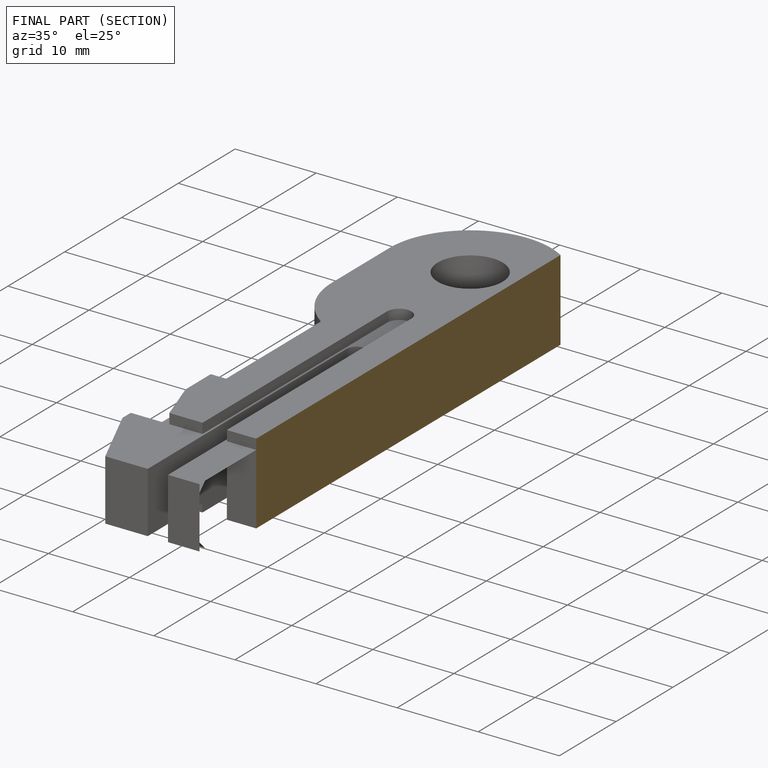
[diagram: finished part — half-section view (interior)]
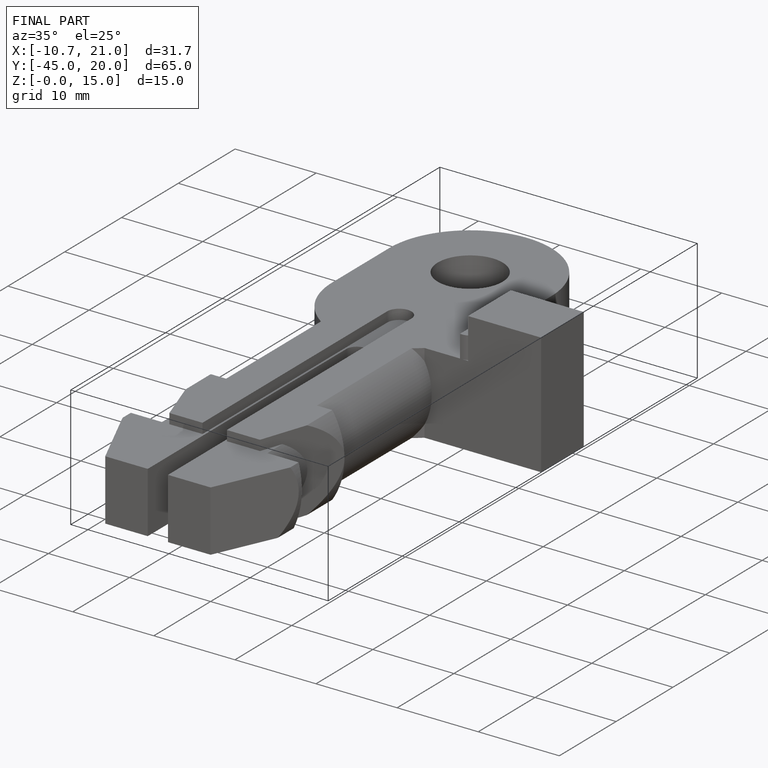
[diagram: finished part — iso view with bounding-box wireframe]
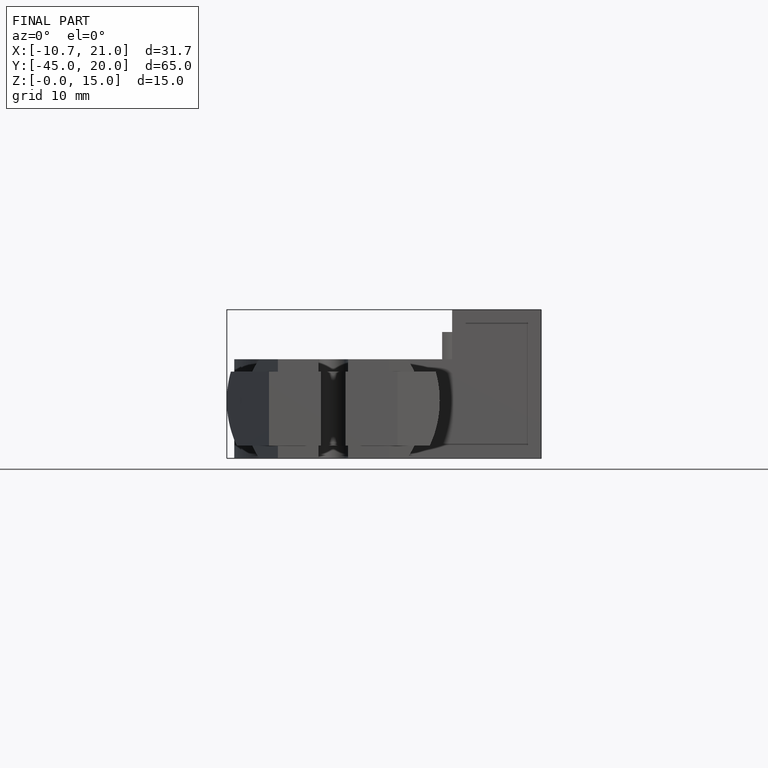
[diagram: finished part — front view with bounding-box wireframe]
